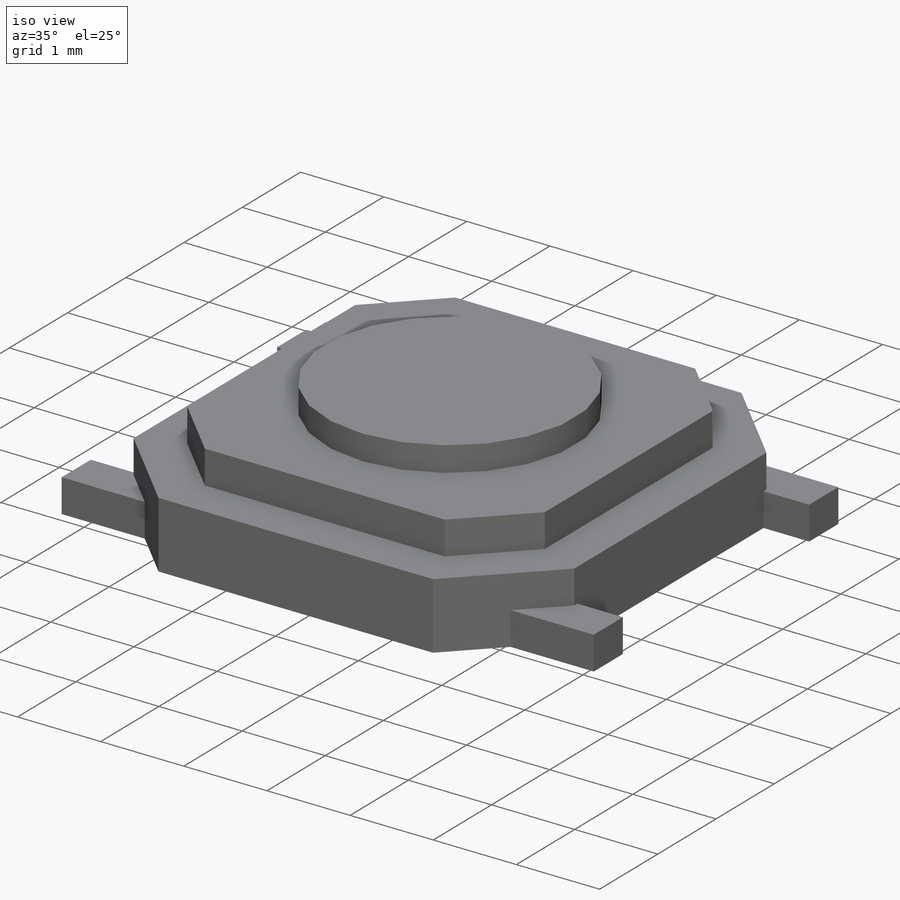
[diagram: iso view]
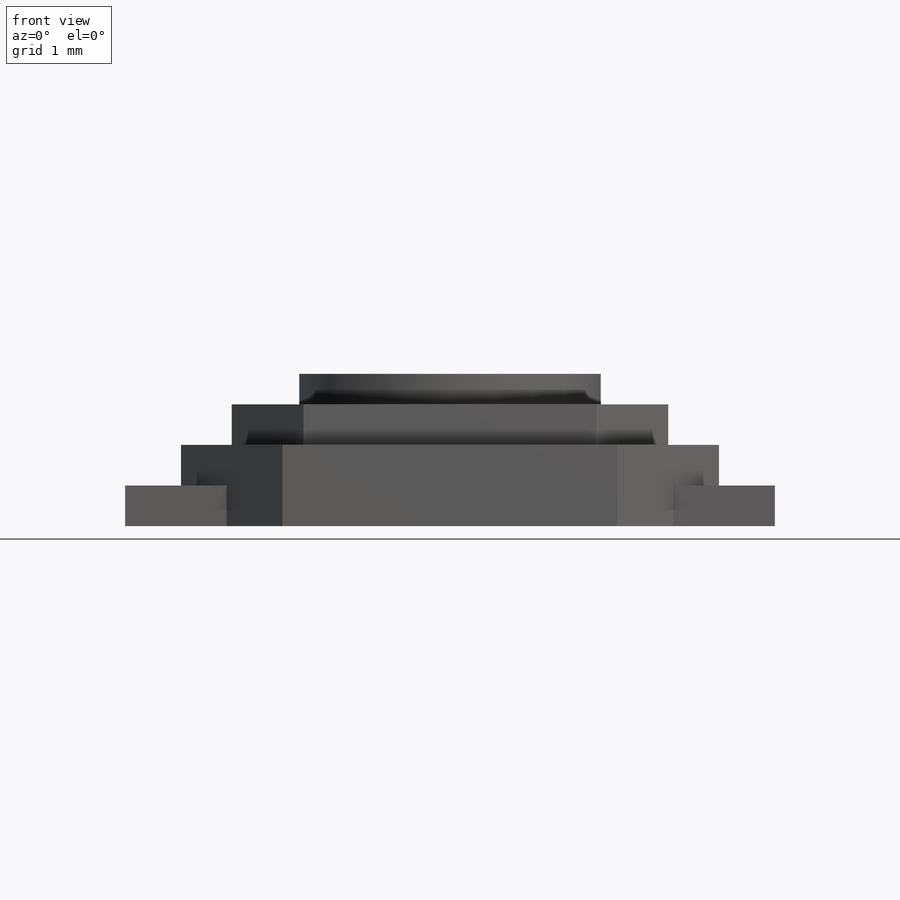
[diagram: front view]
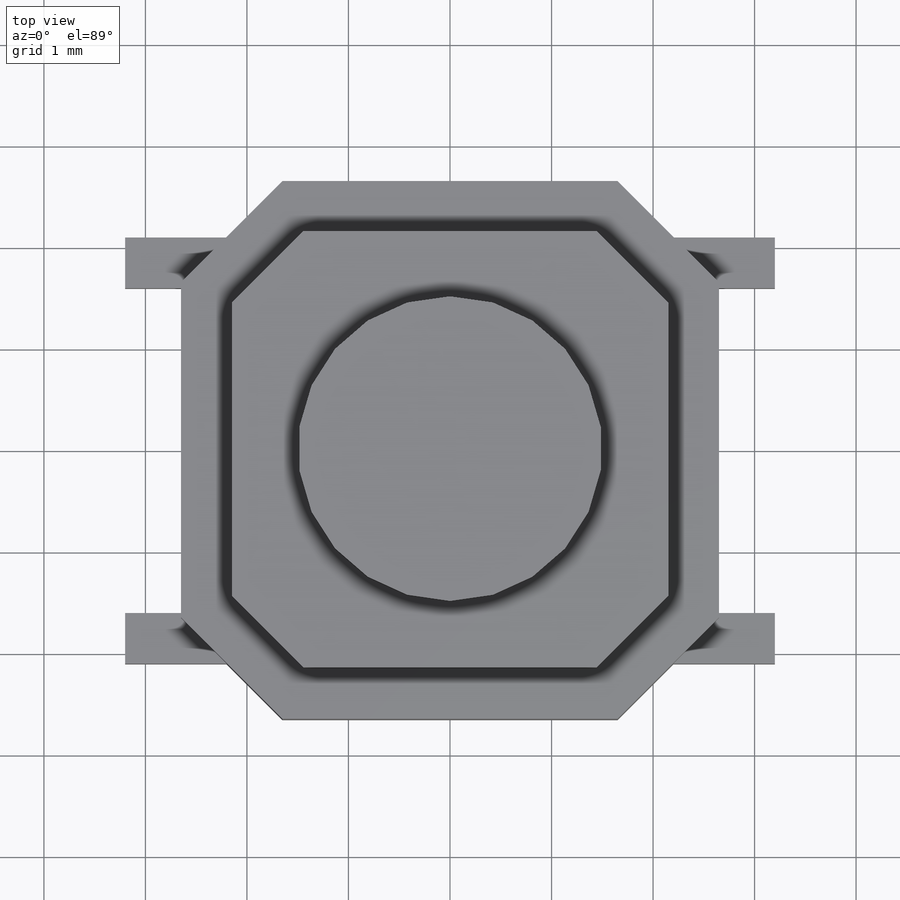
[diagram: top view]
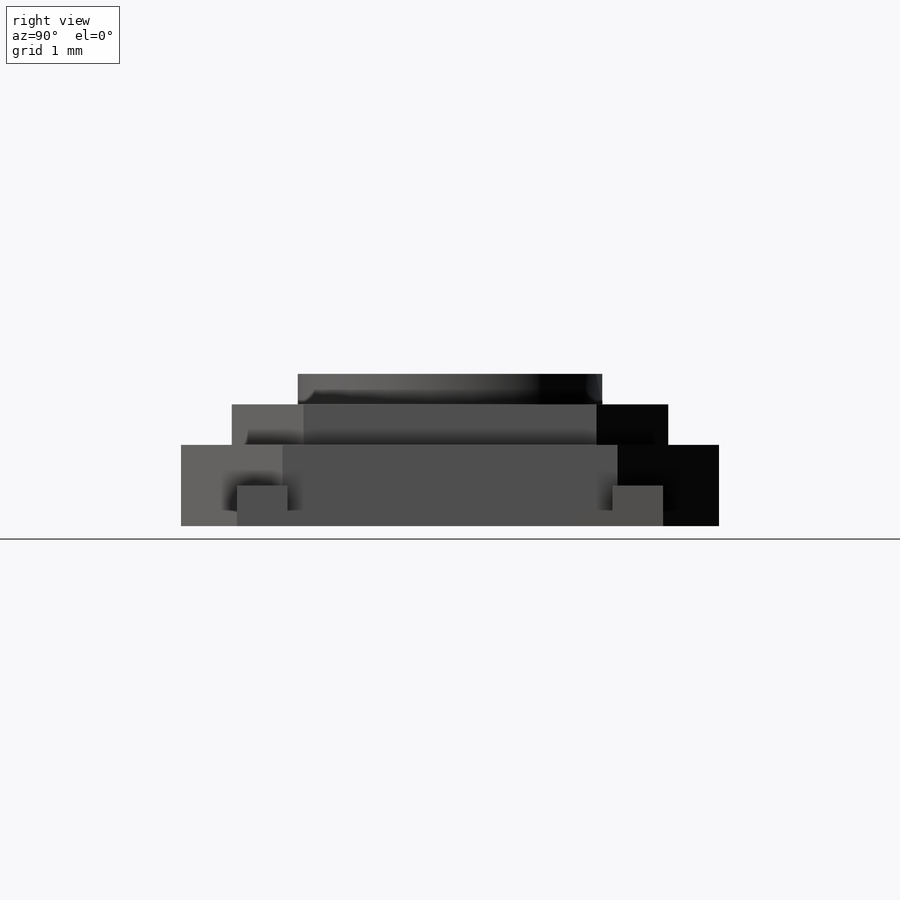
[diagram: right view]
SOLIDWORKS PART (.sldprt)
format: sldprt  version: not decoded by parser v0  size: 207,360 bytes
history: native  units: mm
features: sketch x4, extrude x4, material x1 (+14 scaffold rows collapsed)
feature tree (23):
  scaffold x14  (default folders/planes/origin — collapsed)
  material  "Material <not specified>"
  sketch  "Sketch1"  dims[c1.D1=~0.151924mm c1.D3=0.254mm c2.D1=1.27mm c2.D2=4.2mm c2.D4=6.4mm c3.D1=0.5mm c3.D3=4.4mm]
  extrude  "Extrude1"  Depth=0.4mm
  sketch  "Sketch2"  dims[c1.D1=0.3mm c1.D2=5.3mm c1.D3=5.3mm c2.D1=1.0mm c2.D4=45.0deg c2.D5=1.0mm c2.D6=45.0deg c2.D7=1.0mm c2.D8=45.0deg c2.D9=1.0mm c2.D10=45.0deg]
  extrude  "Extrude2"  Depth=0.8mm
  sketch  "Sketch3"  dims[D1=0.5mm]
  extrude  "Extrude3"  Depth=1.2mm
  sketch  "Sketch4"  dims[D1=3.0mm]
  extrude  "Extrude7"  Depth=1.5mm
decode coverage: 8 of 8 modeling features carry decoded parameters
note: ~ marks probable driven/reference dimensions
note: suppression state not decoded; provenance and decode notes live in map.json
